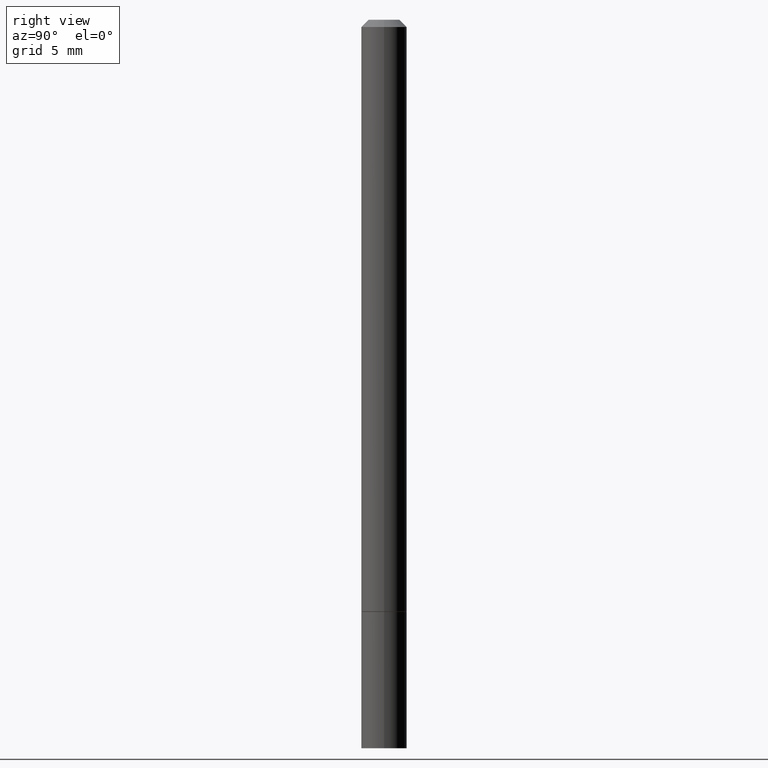
[diagram: clean part render]
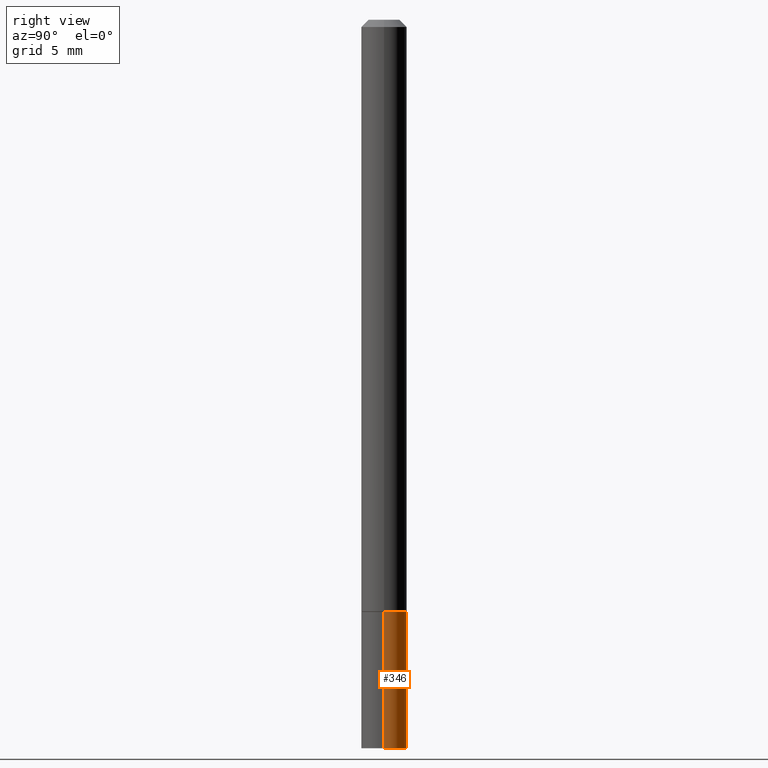
[diagram: same view with one face highlighted and labeled with its STEP entity id]
A machine part, right view. The second image highlights one B-rep face of the part: STEP entity #346.
In plain terms, the highlighted cylindrical surface (edge-blend (fillet) strip) has radius 1.5875 mm, axis along (-0, 0, 1).
Its self-contained STEP definition (entity closure, byte-faithful):
#2 = DIRECTION ( 'NONE',  ( 1.000000000000000000, -6.982962677686261189E-15, 0.000000000000000000 ) ) ;
#8 = FACE_OUTER_BOUND ( 'NONE', #296, .T. ) ;
#13 = VERTEX_POINT ( 'NONE', #302 ) ;
#24 = DIRECTION ( 'NONE',  ( -2.445468806185136597E-29, 3.491481338843145583E-15, 1.000000000000000000 ) ) ;
#46 = AXIS2_PLACEMENT_3D ( 'NONE', #347, #142, #2 ) ;
#50 = VERTEX_POINT ( 'NONE', #223 ) ;
#53 = ORIENTED_EDGE ( 'NONE', *, *, #202, .F. ) ;
#68 = DIRECTION ( 'NONE',  ( 1.000000000000000000, -6.982962677686267499E-15, 4.876176775795935793E-29 ) ) ;
#75 = VERTEX_POINT ( 'NONE', #284 ) ;
#87 = EDGE_CURVE ( 'NONE', #75, #13, #155, .T. ) ;
#90 = CARTESIAN_POINT ( 'NONE',  ( 0.06250000000000001388, -4.364351673553918173E-16, 3.047610484872460571E-30 ) ) ;
#92 = DIRECTION ( 'NONE',  ( -2.445468806185136597E-29, 3.491481338843145583E-15, 1.000000000000000000 ) ) ;
#94 = EDGE_CURVE ( 'NONE', #13, #332, #259, .T. ) ;
#100 = ORIENTED_EDGE ( 'NONE', *, *, #87, .T. ) ;
#116 = EDGE_CURVE ( 'NONE', #50, #332, #291, .T. ) ;
#121 = CYLINDRICAL_SURFACE ( 'NONE', #173, 0.06250000000000001388 ) ;
#142 = DIRECTION ( 'NONE',  ( -2.445468806185136597E-29, 3.491481338843145583E-15, 1.000000000000000000 ) ) ;
#150 = DIRECTION ( 'NONE',  ( -2.445468806185136877E-29, 3.491481338843145188E-15, 1.000000000000000000 ) ) ;
#151 = CARTESIAN_POINT ( 'NONE',  ( 0.000000000000000000, 0.000000000000000000, 0.000000000000000000 ) ) ;
#155 = CIRCLE ( 'NONE', #208, 0.06250000000000001388 ) ;
#166 = CARTESIAN_POINT ( 'NONE',  ( 4.890937612370273194E-29, -6.982962677686291165E-15, -2.000000000000000000 ) ) ;
#173 = AXIS2_PLACEMENT_3D ( 'NONE', #151, #92, #68 ) ;
#178 = CARTESIAN_POINT ( 'NONE',  ( -0.06250000000000001388, -5.884220716803138678E-15, -1.625000000000000000 ) ) ;
#194 = VECTOR ( 'NONE', #150, 39.37007874015748143 ) ;
#195 = DIRECTION ( 'NONE',  ( 1.000000000000000000, -6.982962677686261189E-15, 0.000000000000000000 ) ) ;
#202 = EDGE_CURVE ( 'NONE', #75, #50, #205, .T. ) ;
#205 = LINE ( 'NONE', #90, #194 ) ;
#208 = AXIS2_PLACEMENT_3D ( 'NONE', #166, #24, #195 ) ;
#223 = CARTESIAN_POINT ( 'NONE',  ( 0.06250000000000001388, -6.110092342975503093E-15, -1.625000000000000000 ) ) ;
#226 = CARTESIAN_POINT ( 'NONE',  ( -0.06250000000000001388, 4.440892098500627148E-16, -3.074334431409317165E-30 ) ) ;
#229 = DIRECTION ( 'NONE',  ( -2.445468806185136877E-29, 3.491481338843145188E-15, 1.000000000000000000 ) ) ;
#256 = VECTOR ( 'NONE', #229, 39.37007874015748143 ) ;
#259 = LINE ( 'NONE', #226, #256 ) ;
#268 = ORIENTED_EDGE ( 'NONE', *, *, #94, .T. ) ;
#284 = CARTESIAN_POINT ( 'NONE',  ( 0.06250000000000001388, -7.419397845041682046E-15, -2.000000000000000000 ) ) ;
#291 = CIRCLE ( 'NONE', #46, 0.06250000000000001388 ) ;
#296 = EDGE_LOOP ( 'NONE', ( #100, #268, #359, #53 ) ) ;
#302 = CARTESIAN_POINT ( 'NONE',  ( -0.06250000000000001388, -5.884220716803138678E-15, -2.000000000000000000 ) ) ;
#332 = VERTEX_POINT ( 'NONE', #178 ) ;
#346 = ADVANCED_FACE ( 'NONE', ( #8 ), #121, .T. ) ;
#347 = CARTESIAN_POINT ( 'NONE',  ( 3.973886810050846970E-29, -5.673657175620112213E-15, -1.625000000000000000 ) ) ;
#359 = ORIENTED_EDGE ( 'NONE', *, *, #116, .F. ) ;